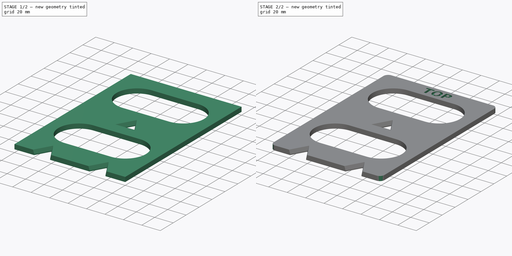
[diagram: build sequence overview — one tinted view per stage of 2, left to right]
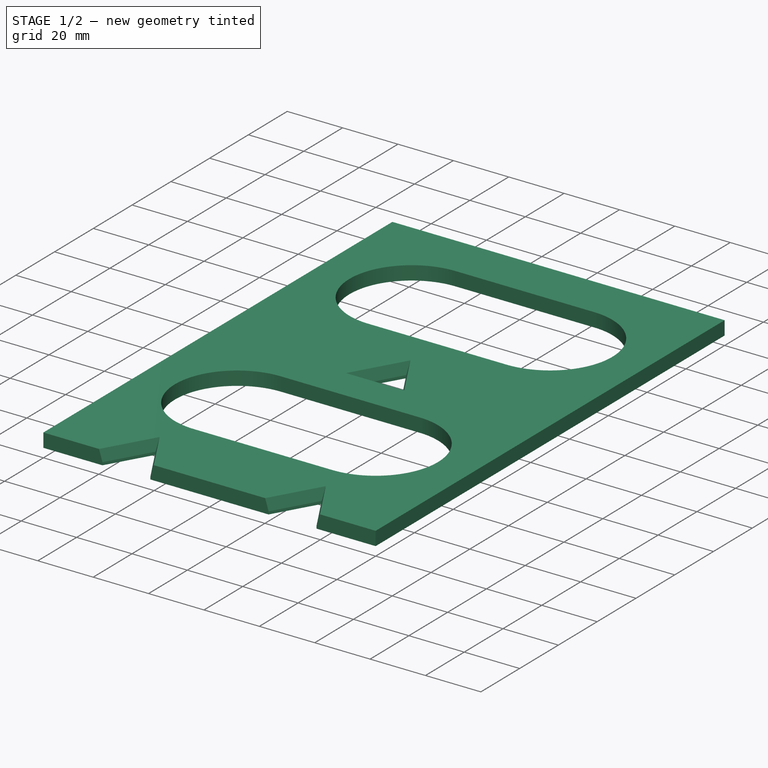
[diagram: stage 1 of 2 — iso view after this stage's code; geometry added in this stage tinted green]
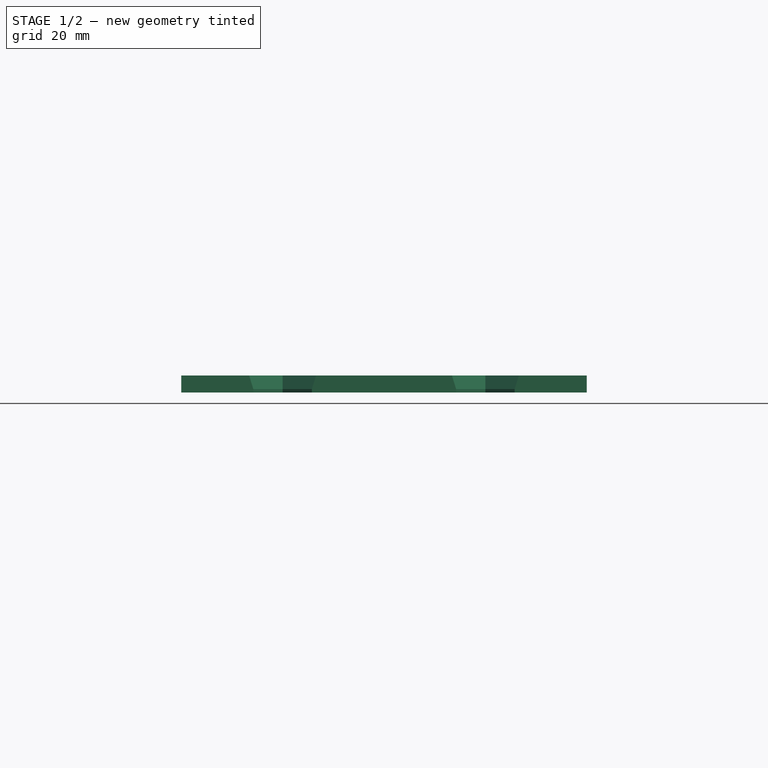
[diagram: stage 1 of 2 — front view after this stage's code; geometry added in this stage tinted green]
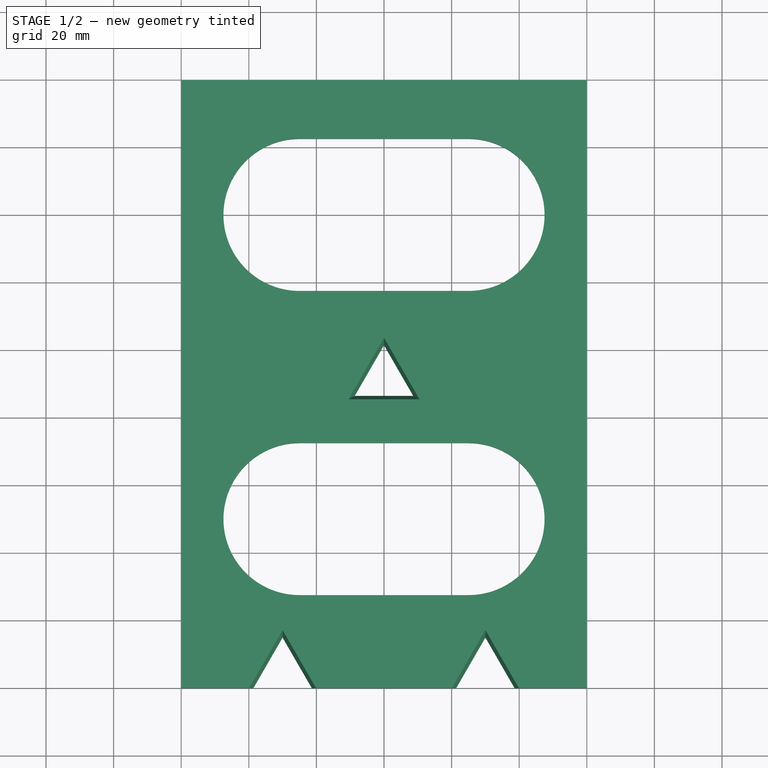
[diagram: stage 1 of 2 — top view after this stage's code; geometry added in this stage tinted green]
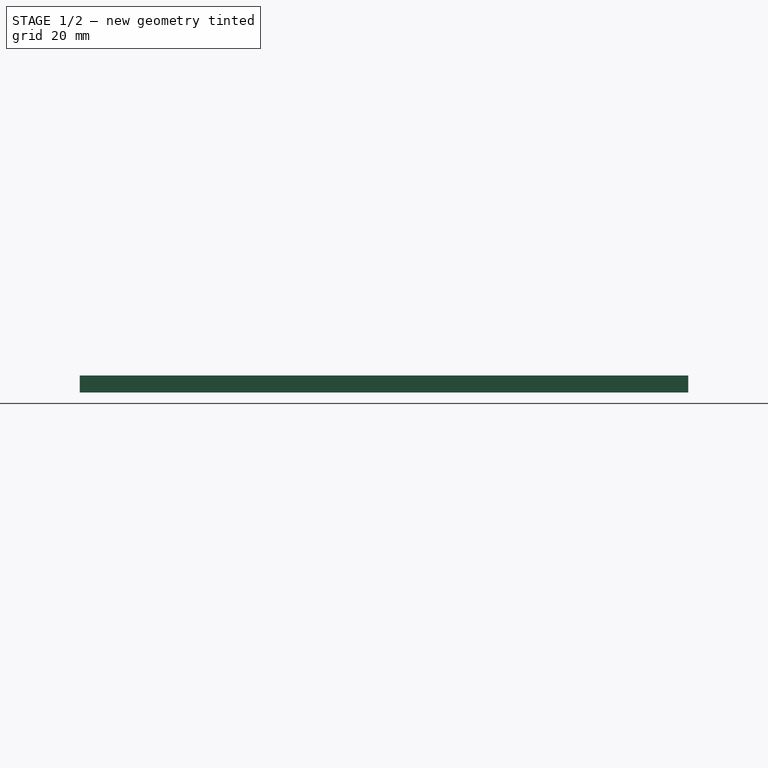
[diagram: stage 1 of 2 — right view after this stage's code; geometry added in this stage tinted green]
FCSTD DOCUMENT  (FreeCAD 0.19R24276 (Git))
Label: Alfatronix PSU
License: All rights reserved
LicenseURL: http://en.wikipedia.org/wiki/All_rights_reserved
objects: Sketcher::SketchObject×1, PartDesign::Pad×1, PartDesign::Chamfer×1, Part::Part2DObjectPython×1, PartDesign::ShapeBinder×1, PartDesign::Fillet×1, PartDesign::Pocket×1, PartDesign::Body×1
note: 12 computed .brp shape members not serialized (recipe doc carries the construction recipe); baked Part::Feature solids carry a one-line shape summary decoded from their .brp

FEATURE [Sketcher::SketchObject] Sketch
  FullyConstrained = true
  MapMode = 5
  Support = -> [XY_Plane]
  sketch-geometry (22):
    g0: LineSegment StartX=0 StartY=0 StartZ=0 EndX=120 EndY=0 EndZ=0
    g1: LineSegment StartX=120 StartY=0 StartZ=0 EndX=120 EndY=-180 EndZ=0
    g2: LineSegment StartX=120 StartY=-180 StartZ=0 EndX=98.6603 EndY=-180 EndZ=0
    g3: LineSegment StartX=98.6603 StartY=-180 StartZ=0 EndX=90 EndY=-165 EndZ=0
    g4: LineSegment StartX=90 StartY=-165 StartZ=0 EndX=81.3397 EndY=-180 EndZ=0
    g5: LineSegment StartX=81.3397 StartY=-180 StartZ=0 EndX=38.6603 EndY=-180 EndZ=0
    g6: LineSegment StartX=38.6603 StartY=-180 StartZ=0 EndX=30 EndY=-165 EndZ=0
    g7: LineSegment StartX=30 StartY=-165 StartZ=0 EndX=21.3397 EndY=-180 EndZ=0
    g8: LineSegment StartX=21.3397 StartY=-180 StartZ=0 EndX=0 EndY=-180 EndZ=0
    g9: LineSegment StartX=0 StartY=-180 StartZ=0 EndX=0 EndY=0 EndZ=0
    g10: LineSegment StartX=60 StartY=-78.5 StartZ=0 EndX=68.6603 EndY=-93.5 EndZ=0
    g11: LineSegment StartX=68.6603 StartY=-93.5 StartZ=0 EndX=51.3397 EndY=-93.5 EndZ=0
    g12: LineSegment StartX=51.3397 StartY=-93.5 StartZ=0 EndX=60 EndY=-78.5 EndZ=0
    g13: LineSegment StartX=60 StartY=-78.5 StartZ=0 EndX=60 EndY=-180 EndZ=0
    g14: ArcOfCircle CenterX=35 CenterY=-40 CenterZ=0 NormalX=0 NormalY=0 NormalZ=1 AngleXU=0 Radius=22.5 StartAngle=1.5708 EndAngle=4.71239
    g15: ArcOfCircle CenterX=85 CenterY=-40 CenterZ=0 NormalX=0 NormalY=0 NormalZ=1 AngleXU=0 Radius=22.5 StartAngle=4.71239 EndAngle=7.85398
    g16: LineSegment StartX=35 StartY=-62.5 StartZ=0 EndX=85 EndY=-62.5 EndZ=0
    g17: LineSegment StartX=35 StartY=-17.5 StartZ=0 EndX=85 EndY=-17.5 EndZ=0
    g18: ArcOfCircle CenterX=35 CenterY=-130 CenterZ=0 NormalX=0 NormalY=0 NormalZ=1 AngleXU=0 Radius=22.5 StartAngle=1.5708 EndAngle=4.71239
    g19: ArcOfCircle CenterX=85 CenterY=-130 CenterZ=0 NormalX=0 NormalY=0 NormalZ=1 AngleXU=0 Radius=22.5 StartAngle=4.71239 EndAngle=7.85398
    g20: LineSegment StartX=35 StartY=-152.5 StartZ=0 EndX=85 EndY=-152.5 EndZ=0
    g21: LineSegment StartX=35 StartY=-107.5 StartZ=0 EndX=85 EndY=-107.5 EndZ=0
  constraints (60):
    c: Coincident(g-1,g0)
    c: PointOnObject(g0,g-1)
    c: Coincident(g0,g1)
    c: Vertical(g1)
    c: Coincident(g1,g2)
    c: Horizontal(g2)
    c: Coincident(g2,g3)
    c: Coincident(g3,g4)
    c: Coincident(g4,g5)
    c: Horizontal(g5)
    c: Coincident(g5,g6)
    c: Coincident(g6,g7)
    c: Coincident(g7,g8)
    c: PointOnObject(g8,g-2)
    c: Horizontal(g8)
    c: Coincident(g8,g9)
    c: Coincident(g9,g0)
    c: DistanceX(g0,g0) = 120
    c: Horizontal(g7,g5)
    c: Horizontal(g5,g2)
    c: Horizontal(g6,g3)
    c: DistanceX(g8,g6) = 30
    c: DistanceX(g6,g3) = 60
    c: Angle(g7,g6) = 1.0472
    c: Angle(g4,g3) = 1.0472
    c: Equal(g7,g6)
    c: Equal(g6,g4)
    c: DistanceY(g6,g0) = 165
    c: DistanceY(g8,g6) = 15
    c: Coincident(g10,g11)
    c: Horizontal(g11)
    c: Coincident(g11,g12)
    c: Coincident(g12,g10)
    c: Angle(g12,g10) = 1.0472
    c: DistanceY(g3,g10) = 86.5
    c: DistanceY(g10,g10) = 15
    c: Coincident(g13,g10)
    c: Vertical(g13)
    c: Symmetric(g5,g5,g13)
    c: Equal(g12,g10)
    c: Tangent(g14,g17) = 1.5708
    c: Tangent(g14,g16) = -1.5708
    c: Tangent(g16,g15) = -1.5708
    c: Tangent(g17,g15) = 1.5708
    c: Horizontal(g16)
    c: Equal(g14,g15)
    c: DistanceY(g14,g14) = 45
    c: DistanceX(g0,g14) = 35
    c: DistanceX(g15,g0) = 35
    c: Tangent(g18,g21) = 1.5708
    c: Tangent(g18,g20) = -1.5708
    c: Tangent(g20,g19) = -1.5708
    c: Tangent(g21,g19) = 1.5708
    c: Horizontal(g20)
    c: Equal(g18,g19)
    c: Vertical(g18,g14)
    c: DistanceY(g8,g18) = 50
    c: Vertical(g15,g19)
    c: DistanceY(g18,g18) = 45
    c: DistanceY(g14,g0) = 40
FEATURE [PartDesign::Pad] Pad
  Direction = (1,1,1)
  Length = 5
  Length2 = 100
  Profile = -> Sketch
  Type = 0
FEATURE [PartDesign::Chamfer] Chamfer
  Angle = 15
  Base = -> Pad [Edge13,Edge16,Edge22,Edge25,Edge63,Edge58,Edge61]
  BaseFeature = -> Pad
  ChamferType = 2
  FlipDirection = false
  Size = 4
  Size2 = 1
  SupportTransform = false
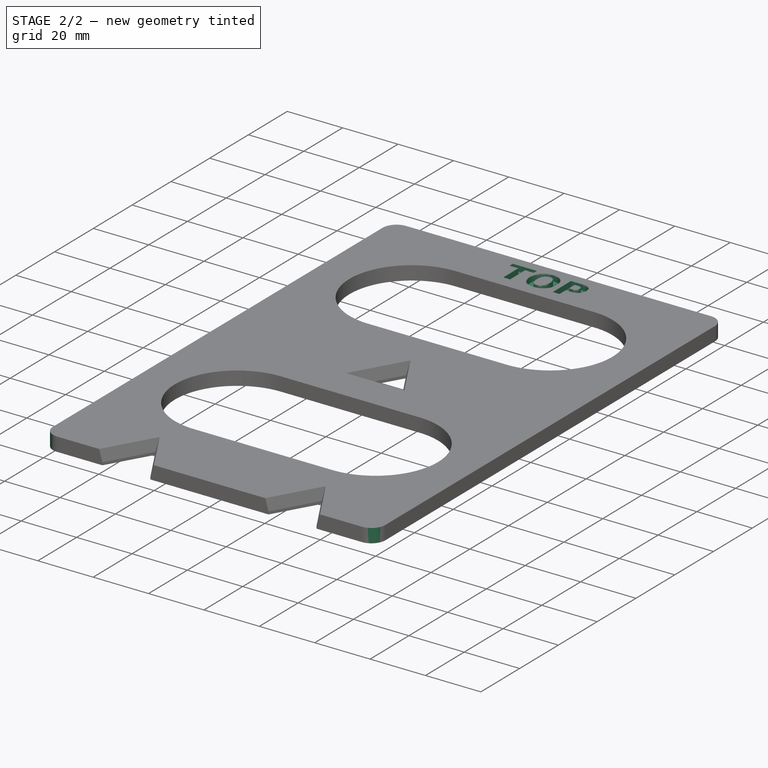
[diagram: stage 2 of 2 — iso view after this stage's code; geometry added in this stage tinted green]
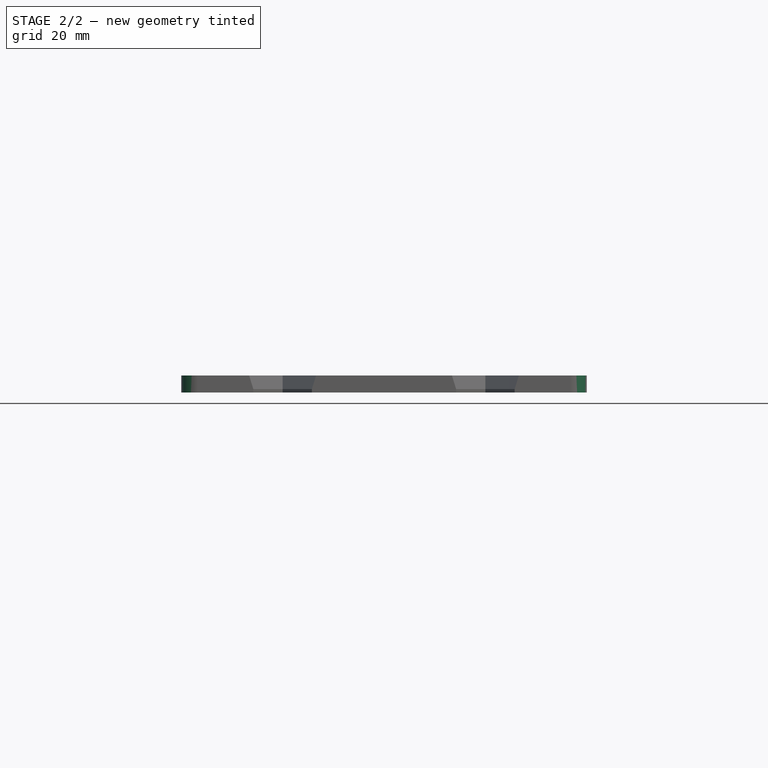
[diagram: stage 2 of 2 — front view after this stage's code; geometry added in this stage tinted green]
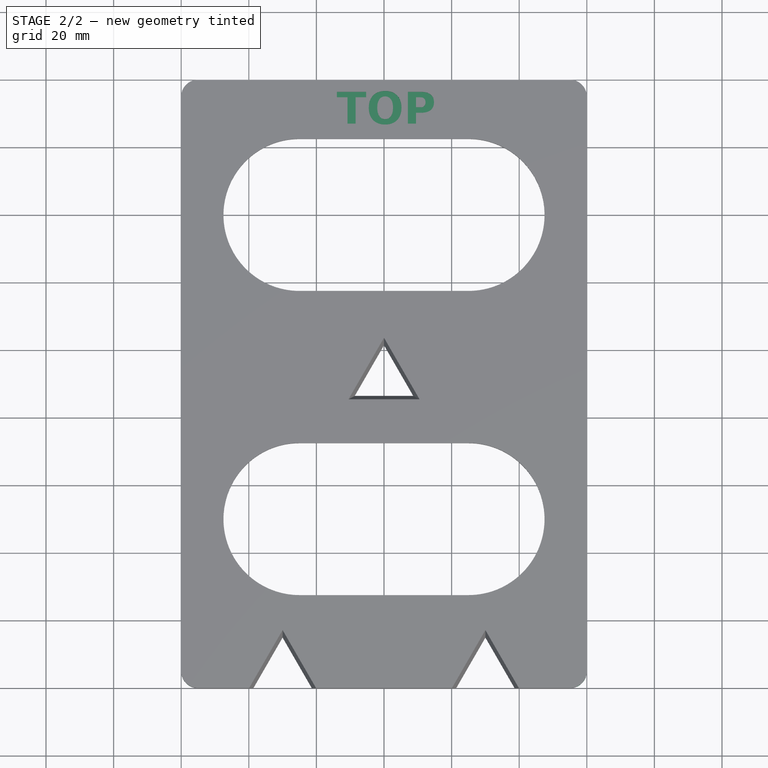
[diagram: stage 2 of 2 — top view after this stage's code; geometry added in this stage tinted green]
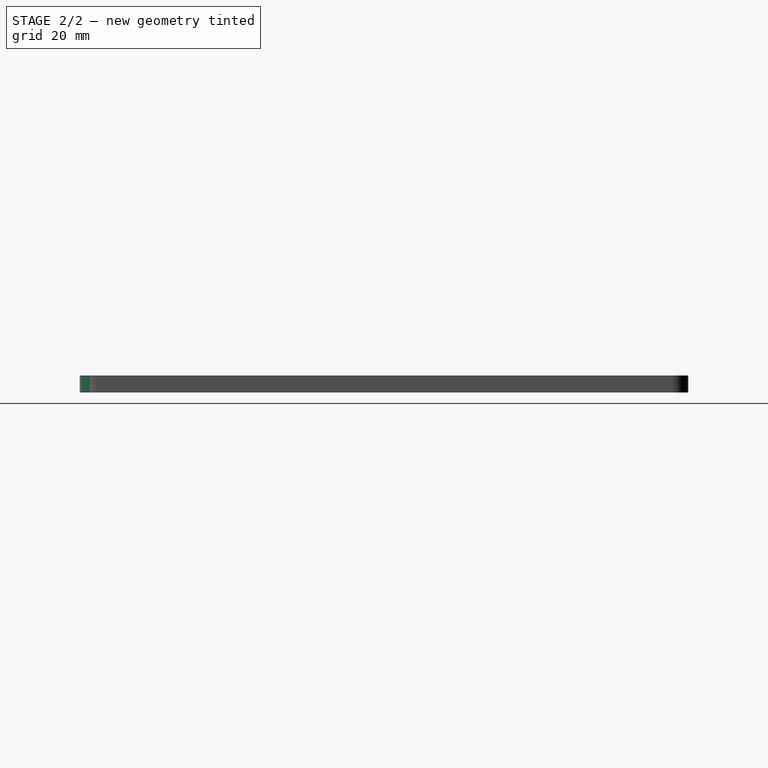
[diagram: stage 2 of 2 — right view after this stage's code; geometry added in this stage tinted green]
FEATURE [Part::Part2DObjectPython] ShapeString  # Draft 2D object (typed FeaturePython)
  FontFile = <path>
  Placement = pos=(46,-13,5) rot=(0,0,1;0rad)
  Size = 10
  String = TOP
  Tracking = 0
FEATURE [PartDesign::ShapeBinder] ShapeBinder
  Placement = pos=(46,-13,5) rot=(0,0,1;0rad)
  Support = -> [ShapeString]
  TraceSupport = false
FEATURE [PartDesign::Fillet] Fillet
  Base = -> Chamfer [Edge5,Edge61,Edge49,Edge53]
  BaseFeature = -> Chamfer
  Radius = 5
  SupportTransform = false
FEATURE [PartDesign::Pocket] Pocket
  BaseFeature = -> Fillet
  Length = 2
  Length2 = 100
  Profile = -> ShapeBinder
  Type = 0
FEATURE [PartDesign::Body] Body
  Group = -> [Sketch,Pad,Chamfer,ShapeBinder,Fillet,Pocket]
  Origin = -> Origin
  Tip = -> Pocket
note: 1 file-system path scrubbed to <path> (originals preserved in the JSON sidecar)
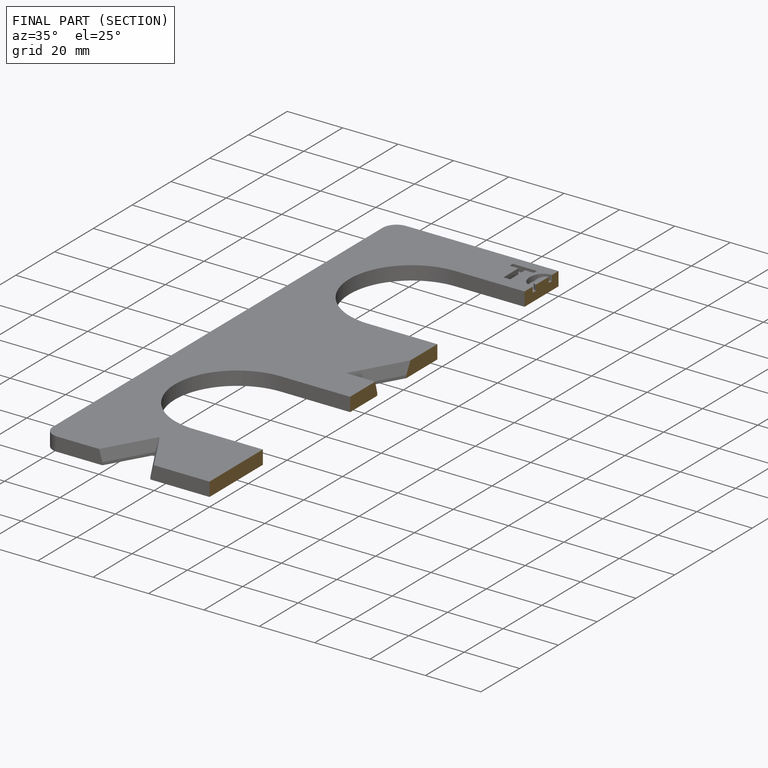
[diagram: finished part — half-section view (interior)]
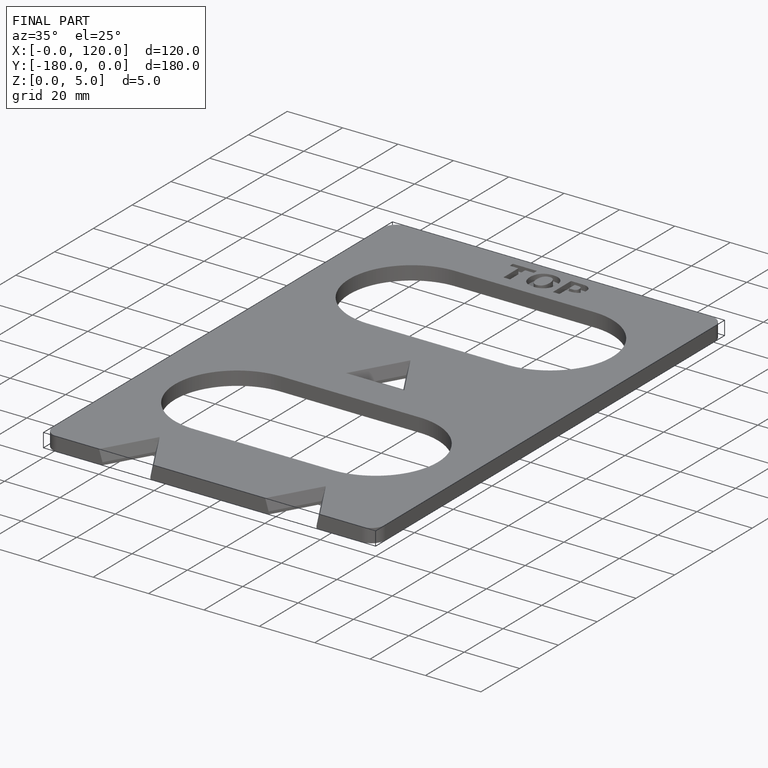
[diagram: finished part — iso view with bounding-box wireframe]
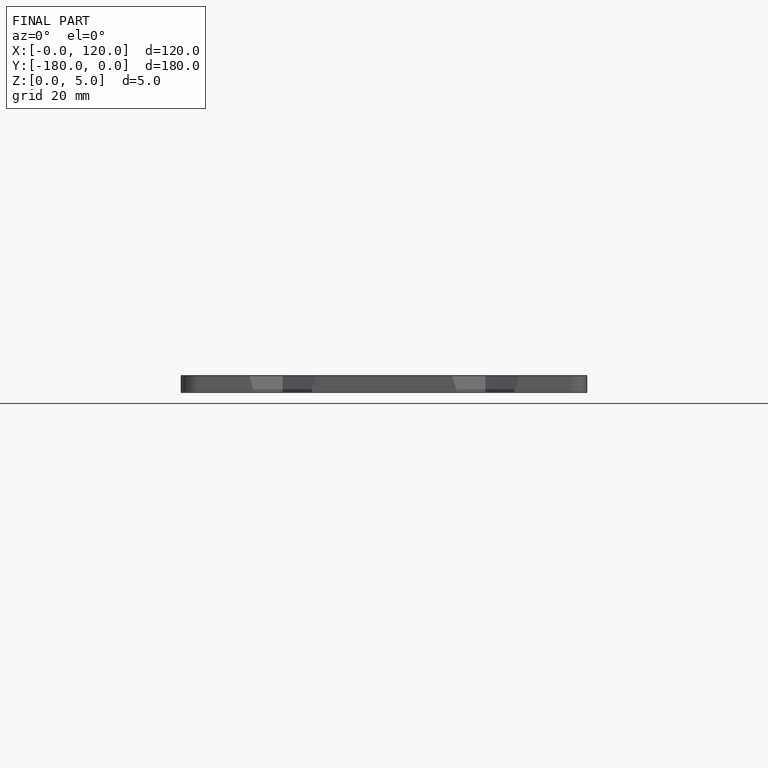
[diagram: finished part — front view with bounding-box wireframe]
